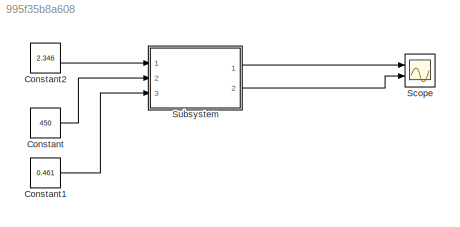
MODEL slx_995f35b8a608
KIND model
CONFIG AbsTol = auto
CONFIG EnableMultiTasking = off
CONFIG FixedStep = auto
CONFIG MaxStep = auto
CONFIG MinStep = auto
CONFIG RelTol = 1e-3
CONFIG SampleTimeConstraint = Unconstrained
CONFIG SolverName = VariableStepAuto
CONFIG StartTime = 0.0
CONFIG StopTime = 10.0
BLOCK [Constant] Constant
  Value = 450
BLOCK [Constant] Constant1
  Value = 0.461
BLOCK [Constant] Constant2
  Value = 2.346
BLOCK [Scope] Scope
  Floating = off
  NumInputPorts = 2
  Ports = [2]
  ScopeSpecificationString = Simulink.scopes.TimeScopeBlockCfg('CurrentConfiguration', extmgr.ConfigurationSet(extmgr.Configuration('Core','General UI',true),extmgr.Configuration('Core','Source UI',true),extmgr.Configuration('Sources','WiredSimulink',true),extmgr.Configuration('Visuals','Time Domain',true,'SerializedDisplays',{struct('MinYLimReal','-15.60513','MaxYLimReal','540.51437','YLabelReal','','MinYLimMag','0.00000','M...<+2105ch>
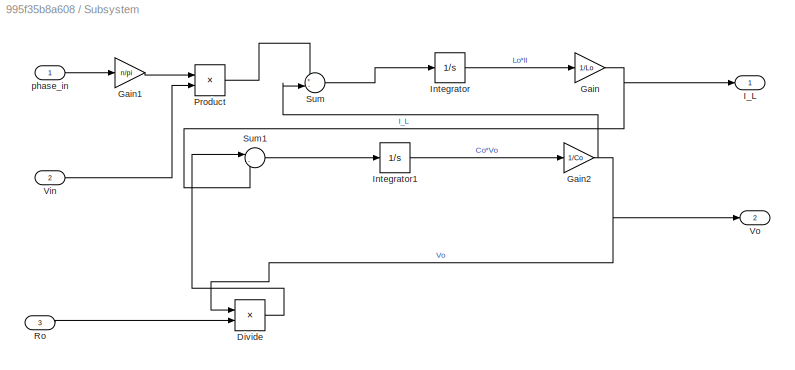
BLOCK [SubSystem] Subsystem
  Ports = [3, 2]
  RequestExecContextInheritance = off
BLOCK [Product] Subsystem/Divide
  Inputs = */
  Ports = [2, 1]
BLOCK [Gain] Subsystem/Gain
  Gain = 1/Lo
BLOCK [Gain] Subsystem/Gain1
  Gain = n/pi
BLOCK [Gain] Subsystem/Gain2
  Gain = 1/Co
BLOCK [Outport] Subsystem/I_L
BLOCK [Integrator] Subsystem/Integrator
  Ports = [1, 1]
BLOCK [Integrator] Subsystem/Integrator1
  Ports = [1, 1]
BLOCK [Product] Subsystem/Product
  Ports = [2, 1]
BLOCK [Inport] Subsystem/Ro
  Port = 3
BLOCK [Sum] Subsystem/Sum
  Inputs = +-|
  Ports = [2, 1]
BLOCK [Sum] Subsystem/Sum1
  Inputs = |-+
  Ports = [2, 1]
BLOCK [Inport] Subsystem/Vin
  Port = 2
BLOCK [Outport] Subsystem/Vo
  Port = 2
BLOCK [Inport] Subsystem/phase_in
LINE Constant1:1 -> Subsystem:3
LINE Constant2:1 -> Subsystem:1
LINE Constant:1 -> Subsystem:2
LINE Subsystem/Divide:1 -> Subsystem/Sum1:1
LINE Subsystem/Gain1:1 -> Subsystem/Product:1
NET Subsystem/Gain2:1 -> Subsystem/Divide:1, Subsystem/Sum:2, Subsystem/Vo:1
NET Subsystem/Gain:1 -> Subsystem/I_L:1, Subsystem/Sum1:2
LINE Subsystem/Integrator1:1 -> Subsystem/Gain2:1
LINE Subsystem/Integrator:1 -> Subsystem/Gain:1
LINE Subsystem/Product:1 -> Subsystem/Sum:1
LINE Subsystem/Ro:1 -> Subsystem/Divide:2
LINE Subsystem/Sum1:1 -> Subsystem/Integrator1:1
LINE Subsystem/Sum:1 -> Subsystem/Integrator:1
LINE Subsystem/Vin:1 -> Subsystem/Product:2
LINE Subsystem/phase_in:1 -> Subsystem/Gain1:1
LINE Subsystem:1 -> Scope:1
LINE Subsystem:2 -> Scope:2
note: NET lines group one-source signal fan-out (src -> all destinations, sorted); 1:1 wires keep LINE
